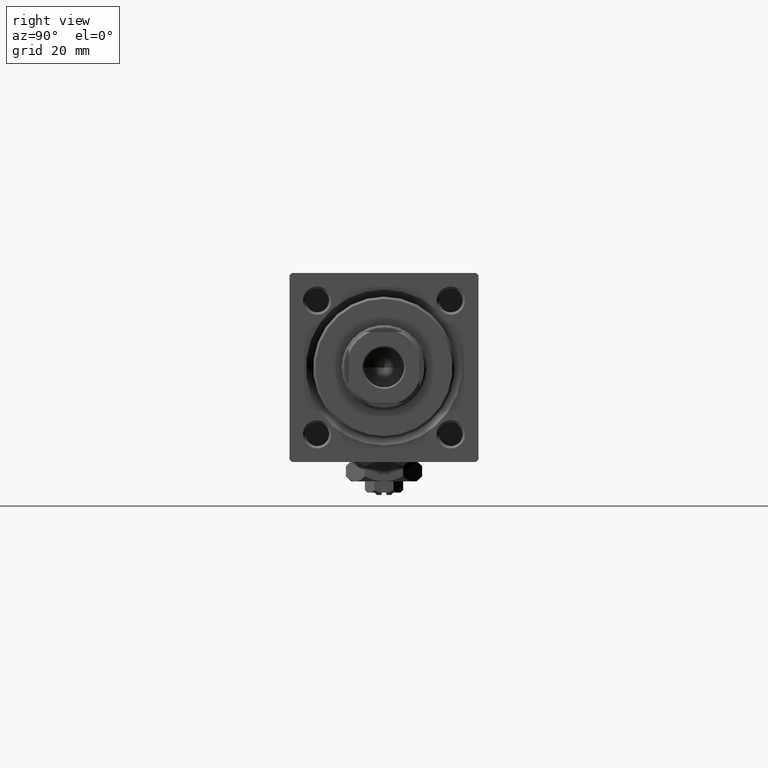
[diagram: clean part render]
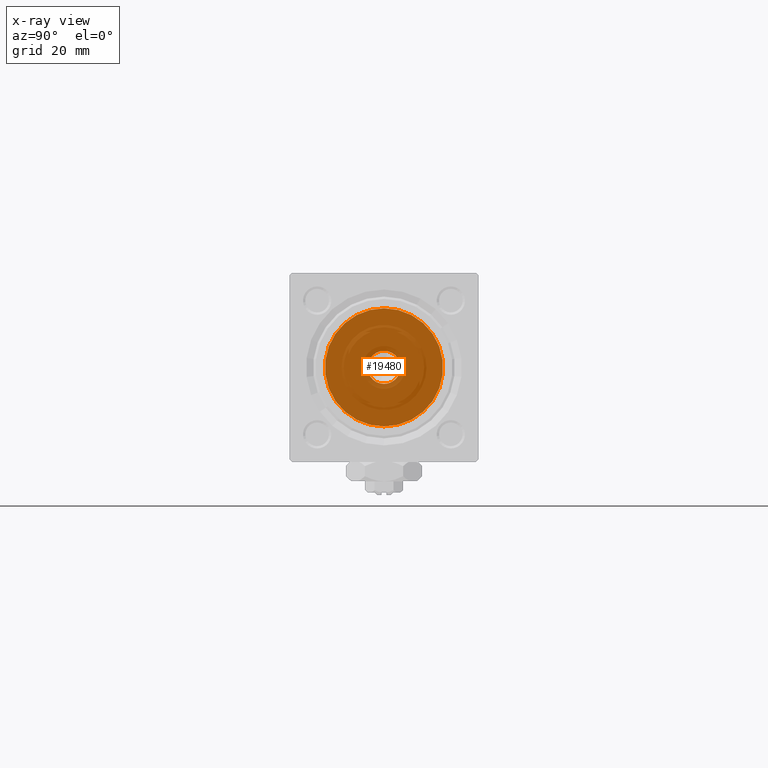
[diagram: x-ray — body ghosted, one internal face saturated and labeled with its STEP entity id]
A machine part, right view, then the same camera in x-ray: the body is ghosted and one INTERNAL B-rep face — a face not visible from any outside direction — is saturated and labeled: STEP entity #19480.
In plain terms, the highlighted planar face has unit normal (-1, 0, 0).
Its self-contained STEP definition (entity closure, byte-faithful):
#1827 = EDGE_CURVE ( 'NONE', #24249, #25281, #38920, .T. ) ;
#2038 = CARTESIAN_POINT ( 'NONE',  ( 24.00000000000000000, -2.602085213965210642E-15, 0.000000000000000000 ) ) ;
#2477 = AXIS2_PLACEMENT_3D ( 'NONE', #2038, #9159, #6258 ) ;
#2635 = CARTESIAN_POINT ( 'NONE',  ( 24.00000000000000000, -2.602085213965210642E-15, 12.49999999999999645 ) ) ;
#3535 = EDGE_CURVE ( 'NONE', #42042, #34040, #28869, .T. ) ;
#6258 = DIRECTION ( 'NONE',  ( 0.000000000000000000, 0.000000000000000000, -1.000000000000000000 ) ) ;
#8857 = FACE_OUTER_BOUND ( 'NONE', #20845, .T. ) ;
#9159 = DIRECTION ( 'NONE',  ( 1.000000000000000000, 0.000000000000000000, 0.000000000000000000 ) ) ;
#11703 = AXIS2_PLACEMENT_3D ( 'NONE', #35434, #26480, #47033 ) ;
#13399 = DIRECTION ( 'NONE',  ( 1.000000000000000000, 0.000000000000000000, 0.000000000000000000 ) ) ;
#13688 = ORIENTED_EDGE ( 'NONE', *, *, #33425, .T. ) ;
#16438 = AXIS2_PLACEMENT_3D ( 'NONE', #32836, #17035, #41019 ) ;
#17035 = DIRECTION ( 'NONE',  ( -1.000000000000000000, 0.000000000000000000, -0.000000000000000000 ) ) ;
#18485 = EDGE_CURVE ( 'NONE', #25281, #24249, #37756, .T. ) ;
#19480 = ADVANCED_FACE ( 'NONE', ( #25200, #8857 ), #45734, .F. ) ;
#20845 = EDGE_LOOP ( 'NONE', ( #13688, #38557 ) ) ;
#20972 = CIRCLE ( 'NONE', #2477, 12.49999999999999645 ) ;
#24249 = VERTEX_POINT ( 'NONE', #51132 ) ;
#24596 = DIRECTION ( 'NONE',  ( 0.000000000000000000, 0.000000000000000000, 1.000000000000000000 ) ) ;
#25200 = FACE_BOUND ( 'NONE', #35041, .T. ) ;
#25281 = VERTEX_POINT ( 'NONE', #33703 ) ;
#26480 = DIRECTION ( 'NONE',  ( -1.000000000000000000, -0.000000000000000000, -0.000000000000000000 ) ) ;
#28869 = CIRCLE ( 'NONE', #31411, 12.49999999999999645 ) ;
#29790 = ORIENTED_EDGE ( 'NONE', *, *, #1827, .T. ) ;
#31411 = AXIS2_PLACEMENT_3D ( 'NONE', #48966, #13399, #36595 ) ;
#32836 = CARTESIAN_POINT ( 'NONE',  ( 24.00000000000000000, 0.000000000000000000, 0.000000000000000000 ) ) ;
#33002 = AXIS2_PLACEMENT_3D ( 'NONE', #40423, #40174, #24596 ) ;
#33425 = EDGE_CURVE ( 'NONE', #34040, #42042, #20972, .T. ) ;
#33703 = CARTESIAN_POINT ( 'NONE',  ( 23.99999999999999289, 0.000000000000000000, 3.500000000000000000 ) ) ;
#34040 = VERTEX_POINT ( 'NONE', #2635 ) ;
#35041 = EDGE_LOOP ( 'NONE', ( #36602, #29790 ) ) ;
#35434 = CARTESIAN_POINT ( 'NONE',  ( 23.99999999999999289, 0.000000000000000000, 0.000000000000000000 ) ) ;
#36595 = DIRECTION ( 'NONE',  ( 0.000000000000000000, 0.000000000000000000, -1.000000000000000000 ) ) ;
#36602 = ORIENTED_EDGE ( 'NONE', *, *, #18485, .T. ) ;
#37756 = CIRCLE ( 'NONE', #11703, 3.500000000000000000 ) ;
#38557 = ORIENTED_EDGE ( 'NONE', *, *, #3535, .T. ) ;
#38920 = CIRCLE ( 'NONE', #33002, 3.500000000000000000 ) ;
#40174 = DIRECTION ( 'NONE',  ( -1.000000000000000000, -0.000000000000000000, -0.000000000000000000 ) ) ;
#40423 = CARTESIAN_POINT ( 'NONE',  ( 23.99999999999999289, 0.000000000000000000, 0.000000000000000000 ) ) ;
#41019 = DIRECTION ( 'NONE',  ( -0.000000000000000000, 0.000000000000000000, 1.000000000000000000 ) ) ;
#42042 = VERTEX_POINT ( 'NONE', #50021 ) ;
#45734 = PLANE ( 'NONE',  #16438 ) ;
#47033 = DIRECTION ( 'NONE',  ( 0.000000000000000000, 0.000000000000000000, 1.000000000000000000 ) ) ;
#48966 = CARTESIAN_POINT ( 'NONE',  ( 24.00000000000000000, -2.602085213965210642E-15, 0.000000000000000000 ) ) ;
#50021 = CARTESIAN_POINT ( 'NONE',  ( 24.00000000000000000, -1.071276715031019515E-15, -12.49999999999999645 ) ) ;
#51132 = CARTESIAN_POINT ( 'NONE',  ( 23.99999999999999289, 4.286263797015736595E-16, -3.500000000000000000 ) ) ;